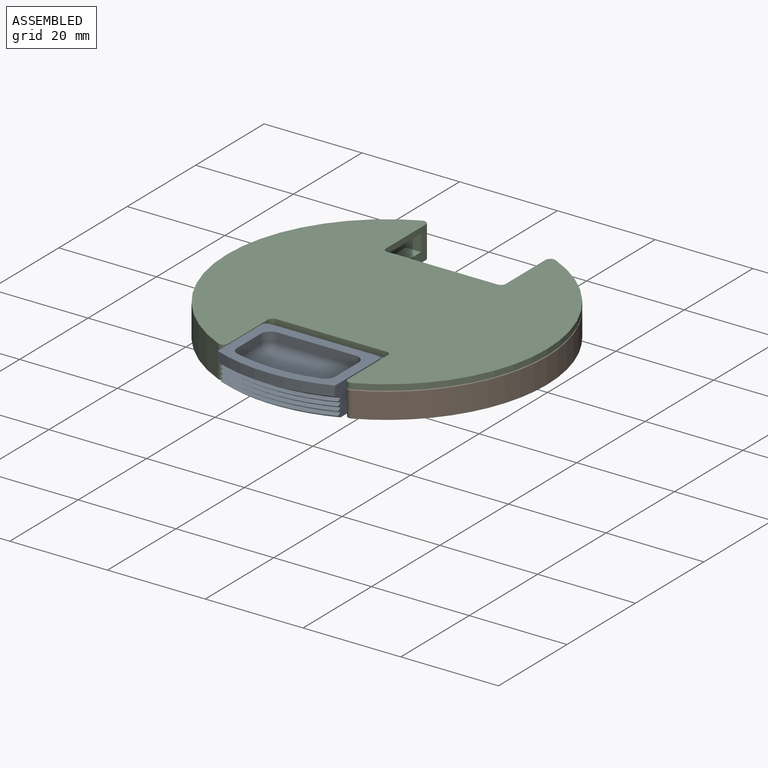
[diagram: assembled view]
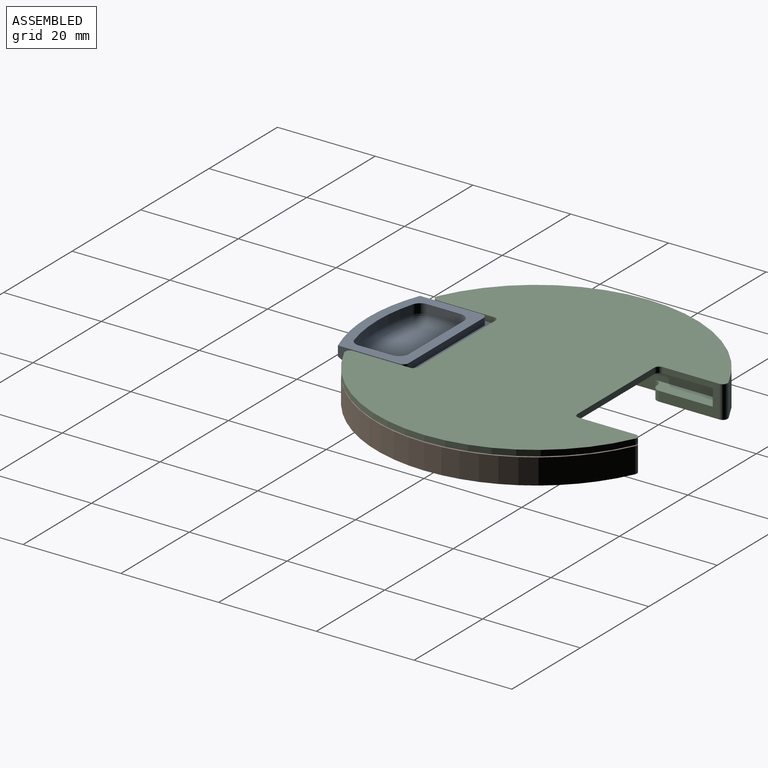
[diagram: assembled view, second angle]
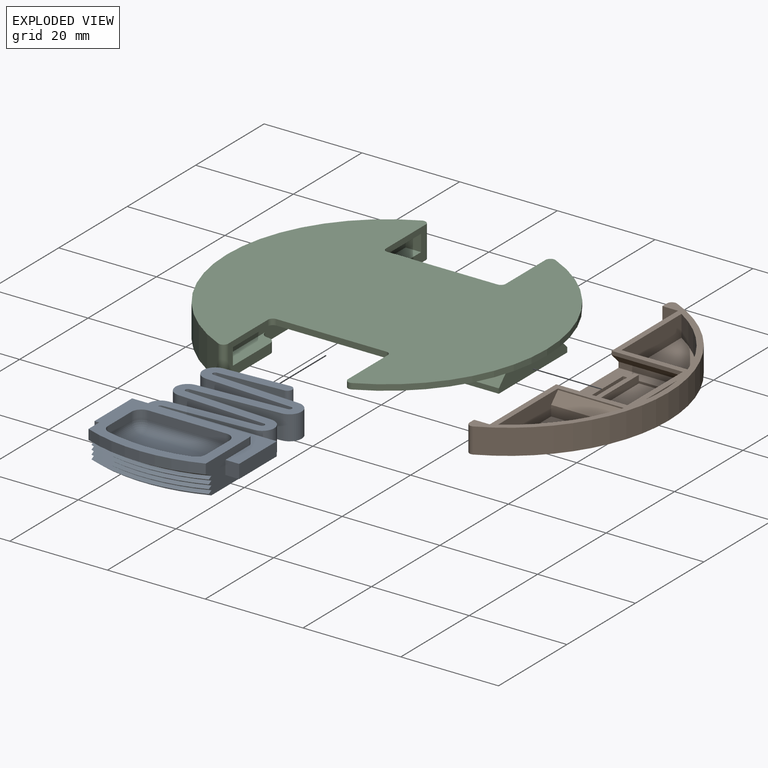
[diagram: exploded view]
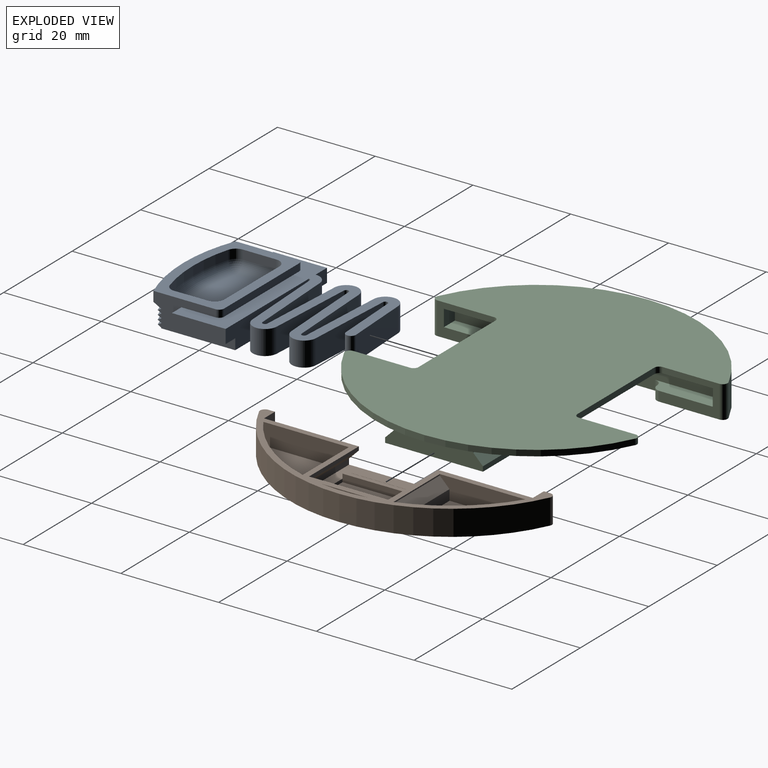
[diagram: exploded view, second angle]
ASSEMBLY  parts=3 mates=2
PART A: 69 faces, bbox 29.6x38.8x6.5 mm
  f0: plane 22x1.5mm, normal (0,1,0), area 33mm2, adj f36,f48,f49,f51
  f1: plane 16.76x6.51mm, normal (1,0,0), area 66.7mm2, adj f3,f4,f5,f22,f23,f24,f25,f26
  f2: plane 16.76x6.51mm, normal (-1,0,0), area 66.7mm2, adj f3,f5,f6,f22,f23,f24,f25,f26
  f3: cylinder r=33mm len=24mm, axis (0,0,-1), area 50mm2, adj f1,f2,f25,f51
  f4: plane 24.3x5mm, normal (0,1,0), area 115.3mm2, adj f1,f17,f36,f39,f40,f50
  f5: cylinder r=31.5mm len=24mm, axis (0,0,1), area 3.2mm2, adj f1,f2,f26,f50
  f6: plane 5x3.3mm, normal (0,1,0), area 10.3mm2, adj f2,f18,f34,f36,f37,f50
  f7: plane 18.17x5mm, normal (-0.06,1,0), area 91mm2, adj f8,f36,f41,f50
  f8: cylinder r=0.5mm len=5mm, axis (0,0,-1), area 7.6mm2, adj f7,f9,f36,f50
  f9: plane 18.17x5mm, normal (-0.06,-1,0), area 91mm2, adj f8,f36,f42,f50
  f10: plane 13.25x5mm, normal (0.06,-1,0), area 66.4mm2, adj f11,f36,f45,f50
  f11: cylinder r=0.5mm len=5mm, axis (0,0,-1), area 7.6mm2, adj f10,f12,f36,f50
  f12: plane 18.17x5mm, normal (0.06,1,0), area 91mm2, adj f11,f36,f46,f50
  f13: plane 18.17x5mm, normal (0.06,-1,0), area 91mm2, adj f14,f36,f46,f50
  f14: cylinder r=0.5mm len=5mm, axis (0,0,-1), area 7.6mm2, adj f13,f15,f36,f50
  f15: plane 18.17x5mm, normal (0.06,1,0), area 91mm2, adj f14,f36,f47,f50
  f16: plane 18.17x5mm, normal (0.06,-1,0), area 91mm2, adj f17,f36,f47,f50
  f17: cylinder r=0.5mm len=5mm, axis (0,0,-1), area 3.8mm2, adj f4,f16,f36,f50
  f18: cylinder r=2.5mm len=5mm, axis (0,0,-1), area 18.9mm2, adj f6,f20,f36,f50
  f19: plane 18.17x5mm, normal (-0.06,-1,0), area 91mm2, adj f21,f36,f41,f50
  f20: plane 18.17x5mm, normal (-0.06,1,0), area 91mm2, adj f18,f21,f36,f50
  f21: cylinder r=0.5mm len=5mm, axis (0,0,-1), area 7.6mm2, adj f19,f20,f36,f50
  f22: cylinder r=31.5mm len=24mm, axis (0,0,1), area 2.2mm2, adj f1,f2,f23,f33
  f23: cone r=31.5mm half-angle=60deg, axis (0,0,1), area 19.7mm2, adj f1,f2,f22,f24
  f24: cone r=31.5mm half-angle=60deg, axis (0,0,-1), area 19.7mm2, adj f1,f2,f23,f25
  f25: cone r=31.5mm half-angle=60deg, axis (0,0,1), area 42.6mm2, adj f1,f2,f3,f24
  f26: cone r=31.5mm half-angle=60deg, axis (0,0,1), area 19.7mm2, adj f1,f2,f5,f27
  f27: cone r=31.5mm half-angle=60deg, axis (0,0,-1), area 19.7mm2, adj f1,f2,f26,f28
  f28: cylinder r=31.5mm len=24mm, axis (0,0,1), area 2.2mm2, adj f1,f2,f27,f29
  f29: cone r=31.5mm half-angle=60deg, axis (0,0,1), area 19.7mm2, adj f1,f2,f28,f30
  f30: cone r=31.5mm half-angle=60deg, axis (0,0,-1), area 19.7mm2, adj f1,f2,f29,f31
  f31: cylinder r=31.5mm len=24mm, axis (0,0,1), area 2.2mm2, adj f1,f2,f30,f32
  f32: cone r=31.5mm half-angle=60deg, axis (0,0,1), area 19.7mm2, adj f1,f2,f31,f33
  f33: cone r=31.5mm half-angle=60deg, axis (0,0,-1), area 19.7mm2, adj f1,f2,f22,f32
  f34: plane 11x2.8mm, normal (0,0,-1), area 30.8mm2, adj f2,f6,f35,f37
  f35: plane 2.8x2.8mm, normal (0,-1,0), area 7.8mm2, adj f2,f34,f36,f37
  f36: plane 30.23x29.6mm, normal (0,0,1), area 348.7mm2, adj f0,f1,f2,f4,f6,f7,f8,f9
  f37: plane 11x2.8mm, normal (-1,0,0), area 30.8mm2, adj f6,f34,f35,f36
  f38: plane 2.8x2.8mm, normal (0,-1,0), area 7.8mm2, adj f1,f36,f39,f40
  f39: plane 11x2.8mm, normal (0,0,-1), area 30.8mm2, adj f1,f4,f38,f40
  f40: plane 11x2.8mm, normal (1,0,0), area 30.8mm2, adj f4,f36,f38,f39
  f41: cylinder r=2.5mm len=5mm, axis (0,0,-1), area 37.9mm2, adj f7,f19,f36,f50
  f42: cylinder r=2.5mm len=5mm, axis (0,0,-1), area 37.9mm2, adj f9,f36,f43,f50
  f43: plane 13.31x5mm, normal (-0.06,1,0), area 66.6mm2, adj f36,f42,f44,f50
  f44: cylinder r=1mm len=5mm, axis (0,0,-1), area 16mm2, adj f36,f43,f45,f50
  f45: plane 5x0mm, normal (1,0,0), area 0mm2, adj f10,f36,f44,f50
  f46: cylinder r=2.5mm len=5mm, axis (0,0,-1), area 37.9mm2, adj f12,f13,f36,f50
  f47: cylinder r=2.5mm len=5mm, axis (0,0,-1), area 37.9mm2, adj f15,f16,f36,f50
  f48: cylinder r=1mm len=1.5mm, axis (0,0,-1), area 2.4mm2, adj f0,f2,f36,f51
  f49: cylinder r=1mm len=1.5mm, axis (0,0,1), area 2.4mm2, adj f0,f1,f36,f51
  f50: plane 36.73x24mm, normal (0,0,-1), area 616mm2, adj f1,f2,f4,f5,f6,f7,f8,f9
  f51: plane 24x16mm, normal (0,0,1), area 139.2mm2, adj f0,f1,f2,f3,f48,f49,f61,f62
  f52: plane 16x8mm, normal (0,0,1), area 122mm2, adj f53,f54,f55,f56
  f53: cylinder r=2mm len=6.87mm, axis (0,1,0), area 21.6mm2, adj f52,f58,f60,f68
  f54: cylinder r=2mm len=16mm, axis (-1,0,0), area 50.3mm2, adj f52,f59,f60,f67
  f55: cylinder r=2mm len=6.87mm, axis (0,-1,0), area 21.6mm2, adj f52,f57,f59,f66
  f56: torus R=29mm, axis (0,0,1), area 53.2mm2, adj f52,f57,f58,f64
  f57: sphere r=2mm, area 5.2mm2, adj f55,f56,f63
  f58: sphere r=2mm, area 5.2mm2, adj f53,f56,f62
  f59: sphere r=2mm, area 6.3mm2, adj f54,f55,f65
  f60: sphere r=2mm, area 6.3mm2, adj f53,f54,f61
  f61: cylinder r=2mm len=2mm, axis (0,0,-1), area 6mm2, adj f51,f60,f67,f68
  f62: cylinder r=2mm len=1.92mm, axis (0,0,1), area 4.9mm2, adj f51,f58,f64,f68
  f63: cylinder r=2mm len=1.92mm, axis (0,0,1), area 4.9mm2, adj f51,f57,f64,f66
  f64: cylinder r=31mm len=17.1mm, axis (0,0,1), area 32.9mm2, adj f51,f56,f62,f63
  f65: cylinder r=2mm len=2mm, axis (0,0,1), area 6mm2, adj f51,f59,f66,f67
  f66: plane 6.87x1.9mm, normal (1,0,0), area 13.1mm2, adj f51,f55,f63,f65
  f67: plane 16x1.9mm, normal (0,-1,0), area 30.4mm2, adj f51,f54,f61,f65
  f68: plane 6.87x1.9mm, normal (-1,0,0), area 13.1mm2, adj f51,f53,f61,f62
PART B: 55 faces, bbox 20.5x59.7x5.2 mm
  f0: plane 14x8.2mm, normal (0,0,1), area 114.8mm2, adj f20,f22,f26,f27
  f1: plane 20.2x14.55mm, normal (0,0,1), area 106.7mm2, adj f2,f16,f17,f20,f23,f24,f25
  f2: plane 55x5.2mm, normal (-1,0,0), area 157.9mm2, adj f1,f3,f4,f5,f6,f10,f14,f15
  f3: plane 14.1x3.2mm, normal (0,0,1), area 40mm2, adj f2,f5,f7,f48,f49
  f4: plane 14.1x3.2mm, normal (0,0,1), area 40mm2, adj f2,f6,f9,f46,f47
  f5: plane 3.2x3.2mm, normal (0,-1,0), area 10.2mm2, adj f2,f3,f7,f10
  f6: plane 3.2x3.2mm, normal (0,1,0), area 10.2mm2, adj f2,f4,f9,f10
  f7: plane 12.25x5.2mm, normal (-1,0,0), area 28.8mm2, adj f3,f5,f10,f12,f45,f48
  f8: cylinder r=32.75mm len=59.52mm, axis (0,0,-1), area 388.4mm2, adj f10,f11,f12,f45
  f9: plane 12.25x5.2mm, normal (-1,0,0), area 28.8mm2, adj f4,f6,f10,f11,f45,f46
  f10: plane 59.71x20.5mm, normal (0,0,1), area 191.1mm2, adj f2,f5,f6,f7,f8,f9,f11,f12
  f11: cylinder r=1mm len=5.2mm, axis (0,0,-1), area 10.4mm2, adj f8,f9,f10,f45
  f12: cylinder r=1mm len=5.2mm, axis (0,0,-1), area 10.4mm2, adj f7,f8,f10,f45
  f13: plane 14x0.12mm, normal (0,0,1), area 1.7mm2, adj f21,f22,f26,f28
  f14: plane 14.55x0.76mm, normal (0,1,0), area 11mm2, adj f2,f10,f15,f20
  f15: plane 14.55x2mm, normal (0,0.71,-0.71), area 41.2mm2, adj f2,f14,f16,f20
  f16: plane 14.55x1.14mm, normal (0,1,0), area 16.6mm2, adj f1,f2,f15,f20
  f17: plane 14.55x1.14mm, normal (0,-1,0), area 16.6mm2, adj f1,f2,f18,f20
  f18: plane 14.55x2mm, normal (0,-0.71,-0.71), area 41.2mm2, adj f2,f17,f19,f20
  f19: plane 14.55x0.76mm, normal (0,-1,0), area 11mm2, adj f2,f10,f18,f20
  f20: plane 20.2x5.2mm, normal (-1,0,0), area 73.8mm2, adj f0,f1,f10,f14,f15,f16,f17,f18
  f21: plane 14x1.3mm, normal (-1,0,0), area 18.2mm2, adj f13,f22,f26,f45
  f22: plane 11.2x2.88mm, normal (0,-1,0), area 17.6mm2, adj f0,f13,f20,f21,f27,f28,f29,f45
  f23: plane 12x1.3mm, normal (0,1,0), area 15.6mm2, adj f1,f20,f24,f45
  f24: plane 15.6x1.3mm, normal (1,0,0), area 20.3mm2, adj f1,f23,f25,f45
  f25: plane 12x1.3mm, normal (0,-1,0), area 15.6mm2, adj f1,f20,f24,f45
  f26: plane 11.2x2.88mm, normal (0,1,0), area 17.6mm2, adj f0,f13,f20,f21,f27,f28,f29,f45
  f27: plane 14x1.58mm, normal (1,0,0), area 22.2mm2, adj f0,f22,f26,f29
  f28: plane 14x1.9mm, normal (-0.64,0,0.77), area 34.7mm2, adj f13,f22,f26,f29
  f29: plane 14x0.98mm, normal (0,0,1), area 13.7mm2, adj f22,f26,f27,f28
  f30: plane 13.51x2.01mm, normal (0,-0.71,0.71), area 37.2mm2, adj f31,f33,f34,f35
  f31: plane 13.5x0.26mm, normal (0,-1,0), area 3.5mm2, adj f10,f30,f33,f34
  f32: plane 15.5x12.81mm, normal (0,0,1), area 121.4mm2, adj f33,f34,f35
  f33: plane 17.5x4.4mm, normal (1,0,0), area 70.7mm2, adj f10,f30,f31,f32,f34,f35
  f34: cylinder r=31.55mm len=17.5mm, axis (0,0,-1), area 92.7mm2, adj f10,f30,f31,f32,f33,f35
  f35: plane 12.81x2.14mm, normal (0,-1,0), area 27.4mm2, adj f30,f32,f33,f34
  f36: plane 13.5x0.26mm, normal (0,1,0), area 3.5mm2, adj f10,f37,f38,f39
  f37: plane 13.51x2.01mm, normal (0,0.71,0.71), area 37.2mm2, adj f36,f38,f39,f41
  f38: cylinder r=31.55mm len=17.5mm, axis (0,0,-1), area 92.7mm2, adj f10,f36,f37,f39,f40,f41
  f39: plane 17.5x4.4mm, normal (1,0,0), area 70.7mm2, adj f10,f36,f37,f38,f40,f41
  f40: plane 15.5x12.81mm, normal (0,0,1), area 121.4mm2, adj f38,f39,f41
  f41: plane 12.81x2.14mm, normal (0,1,0), area 27.4mm2, adj f37,f38,f39,f40
  f42: plane 9.37x4.4mm, normal (1,0,0), area 41.2mm2, adj f10,f43,f44
  f43: cylinder r=31.55mm len=9.37mm, axis (0,0,-1), area 41.4mm2, adj f10,f42,f44
  f44: plane 9.37x0.35mm, normal (0,0,1), area 2.2mm2, adj f42,f43
  f45: plane 59.71x20.5mm, normal (0,0,-1), area 774mm2, adj f2,f7,f8,f9,f11,f12,f20,f21
  f46: cylinder r=1.6mm len=2mm, axis (0,0,1), area 5mm2, adj f4,f9,f45,f47
  f47: cylinder r=1.6mm len=2mm, axis (0,0,1), area 5mm2, adj f2,f4,f45,f46
  f48: cylinder r=1.6mm len=2mm, axis (0,0,-1), area 5mm2, adj f3,f7,f45,f49
  f49: cylinder r=1.6mm len=2mm, axis (0,0,-1), area 5mm2, adj f2,f3,f45,f48
  f50: plane 11.6x0.41mm, normal (0,0,1), area 4.7mm2, adj f51,f52,f53,f54
  f51: plane 0.41x0.34mm, normal (0,1,0), area 0.1mm2, adj f50,f53,f54
  f52: plane 0.41x0.34mm, normal (0,-1,0), area 0.1mm2, adj f50,f53,f54
  f53: plane 11.6x0.34mm, normal (-1,0,0), area 3.9mm2, adj f50,f51,f52,f54
  f54: plane 11.6x0.41mm, normal (0.64,0,-0.77), area 6.1mm2, adj f50,f51,f52,f53
PART C: 67 faces, bbox 65.5x59.7x6.6 mm
  f0: plane 59.71x20.5mm, normal (0,0,-1), area 163.5mm2, adj f10,f11,f12,f25,f29,f30,f31,f32
  f1: plane 22.5x1.2mm, normal (0,1,0), area 27mm2, adj f8,f9,f18,f41
  f2: plane 11.6x1.2mm, normal (-1,0,0), area 13.9mm2, adj f8,f18,f19,f41
  f3: cylinder r=32.75mm len=59.52mm, axis (0,0,-1), area 89.6mm2, adj f18,f19,f20,f41
  f4: plane 22.5x1.2mm, normal (0,-1,0), area 27mm2, adj f6,f7,f18,f41
  f5: plane 11.6x1.2mm, normal (-1,0,0), area 13.9mm2, adj f7,f18,f20,f41
  f6: cylinder r=1mm len=1.2mm, axis (0,0,1), area 1.9mm2, adj f4,f11,f18,f41
  f7: cylinder r=1mm len=1.2mm, axis (0,0,1), area 1.9mm2, adj f4,f5,f18,f41
  f8: cylinder r=1mm len=1.2mm, axis (0,0,-1), area 1.9mm2, adj f1,f2,f18,f41
  f9: cylinder r=1mm len=1.2mm, axis (0,0,-1), area 1.9mm2, adj f1,f10,f18,f41
  f10: plane 12.25x6.6mm, normal (1,0,0), area 43mm2, adj f0,f9,f18,f26,f27,f29,f34,f41
  f11: plane 12.25x6.6mm, normal (1,0,0), area 43mm2, adj f0,f6,f18,f24,f28,f30,f32,f41
  f12: cylinder r=32.75mm len=59.52mm, axis (0,0,-1), area 493mm2, adj f0,f29,f30,f41
  f13: plane 14.45x1mm, normal (0,-1,0), area 14.4mm2, adj f15,f16,f23,f35
  f14: plane 14.45x1mm, normal (0,1,0), area 14.4mm2, adj f15,f17,f23,f35
  f15: plane 20x14.45mm, normal (0,0,-1), area 246.2mm2, adj f13,f14,f23,f35,f36,f37,f38,f39
  f16: plane 14.45x2mm, normal (0,-0.71,0.71), area 40.9mm2, adj f13,f21,f23,f35
  f17: plane 14.45x2mm, normal (0,0.71,0.71), area 40.9mm2, adj f14,f22,f23,f35
  f18: plane 59.71x48.2mm, normal (0,0,-1), area 1642.4mm2, adj f1,f2,f3,f4,f5,f6,f7,f8
  f19: cylinder r=1mm len=1.42mm, axis (0,0,-1), area 2.4mm2, adj f2,f3,f18,f41
  f20: cylinder r=1mm len=1.42mm, axis (0,0,-1), area 2.4mm2, adj f3,f5,f18,f41
  f21: plane 14.45x1mm, normal (0,-1,0), area 14.4mm2, adj f16,f18,f23,f35
  f22: plane 14.45x1mm, normal (0,1,0), area 14.4mm2, adj f17,f18,f23,f35
  f23: plane 20x4mm, normal (-1,0,0), area 72mm2, adj f13,f14,f15,f16,f17,f18,f21,f22
  f24: plane 14.1x3.2mm, normal (0,0,1), area 40mm2, adj f11,f25,f28,f31,f32
  f25: plane 55x5.4mm, normal (1,0,0), area 240.6mm2, adj f0,f18,f24,f26,f27,f28,f31,f33
  f26: plane 14.1x3.2mm, normal (0,0,1), area 40mm2, adj f10,f25,f27,f33,f34
  f27: plane 3.4x3.2mm, normal (0,-1,0), area 10.9mm2, adj f10,f18,f25,f26
  f28: plane 3.4x3.2mm, normal (0,1,0), area 10.9mm2, adj f11,f18,f24,f25
  f29: cylinder r=1mm len=6.6mm, axis (0,0,-1), area 13.2mm2, adj f0,f10,f12,f41
  f30: cylinder r=1mm len=6.6mm, axis (0,0,-1), area 13.2mm2, adj f0,f11,f12,f41
  f31: cylinder r=1.6mm len=2mm, axis (0,0,-1), area 5mm2, adj f0,f24,f25,f32
  f32: cylinder r=1.6mm len=2mm, axis (0,0,1), area 5mm2, adj f0,f11,f24,f31
  f33: cylinder r=1.6mm len=2mm, axis (0,0,1), area 5mm2, adj f0,f25,f26,f34
  f34: cylinder r=1.6mm len=2mm, axis (0,0,-1), area 5mm2, adj f0,f10,f26,f33
  f35: plane 20x4mm, normal (1,0,0), area 72mm2, adj f13,f14,f15,f16,f17,f18,f21,f22
  f36: plane 3.02x1.58mm, normal (0,1,0), area 3.3mm2, adj f15,f38,f39,f40
  f37: plane 3.02x1.58mm, normal (0,-1,0), area 3.3mm2, adj f15,f38,f39,f40
  f38: plane 14.2x1.58mm, normal (-1,0,0), area 22.5mm2, adj f15,f36,f37,f40
  f39: plane 14.2x1.9mm, normal (0.64,0,-0.77), area 35.1mm2, adj f15,f36,f37,f40
  f40: plane 14.2x1.11mm, normal (0,0,-1), area 15.8mm2, adj f36,f37,f38,f39
  f41: plane 65.5x59.71mm, normal (0,0,1), area 2598mm2, adj f1,f2,f3,f4,f5,f6,f7,f8
  f42: cylinder r=31.55mm len=57.08mm, axis (0,0,-1), area 351.6mm2, adj f0,f43,f44,f45,f46,f47,f52
  f43: plane 11.94x0.8mm, normal (-1,0,0), area 9.6mm2, adj f0,f42,f47,f51
  f44: plane 11.94x0.8mm, normal (-1,0,0), area 9.6mm2, adj f0,f42,f45,f49
  f45: plane 15.14x3.2mm, normal (0,0,-1), area 38.5mm2, adj f42,f44,f46,f48,f49
  f46: plane 53.6x5.4mm, normal (-1,0,0), area 268mm2, adj f0,f42,f45,f47,f48,f50,f52
  f47: plane 15.14x3.2mm, normal (0,0,-1), area 38.5mm2, adj f42,f43,f46,f50,f51
  f48: cylinder r=2.8mm len=2.8mm, axis (0,0,-1), area 3.5mm2, adj f0,f45,f46,f49
  f49: cylinder r=0.4mm len=0.8mm, axis (0,0,1), area 0.5mm2, adj f0,f44,f45,f48
  f50: cylinder r=2.8mm len=2.8mm, axis (0,0,1), area 3.5mm2, adj f0,f46,f47,f51
  f51: cylinder r=0.4mm len=0.8mm, axis (0,0,-1), area 0.5mm2, adj f0,f43,f47,f50
  f52: plane 53.6x14.9mm, normal (0,0,-1), area 564mm2, adj f42,f46
  f53: plane 3.36x1.3mm, normal (0,-0.71,-0.71), area 4.8mm2, adj f56,f59,f61,f64
  f54: plane 3.36x1.3mm, normal (0,0.71,-0.71), area 4.8mm2, adj f56,f59,f63,f64
  f55: plane 16.21x5.6mm, normal (0,0,1), area 90.8mm2, adj f57,f58,f62,f65
  f56: plane 16.21x1.8mm, normal (0,0,1), area 29.2mm2, adj f53,f54,f59,f64
  f57: plane 5.6x1.3mm, normal (0,-0.71,-0.71), area 10.3mm2, adj f55,f61,f62,f65
  f58: plane 5.6x1.3mm, normal (0,0.71,-0.71), area 10.3mm2, adj f55,f62,f63,f65
  f59: plane 16.21x1.9mm, normal (-0.64,0,0.77), area 36.3mm2, adj f53,f54,f56,f61,f63,f66
  f60: plane 13.6x12.05mm, normal (0,0,-1), area 163.9mm2, adj f61,f63,f64,f65
  f61: plane 12.05x1.5mm, normal (0,-1,0), area 17.2mm2, adj f53,f57,f59,f60,f62,f64,f65,f66
  f62: plane 16.21x1.58mm, normal (1,0,0), area 23.2mm2, adj f55,f57,f58,f61,f63,f66
  f63: plane 12.05x1.5mm, normal (0,1,0), area 17.2mm2, adj f54,f58,f59,f60,f62,f64,f65,f66
  f64: plane 16.21x2.8mm, normal (1,0,0), area 39.8mm2, adj f53,f54,f56,f60,f61,f63
  f65: plane 16.21x2.8mm, normal (-1,0,0), area 39.8mm2, adj f55,f57,f58,f60,f61,f63
  f66: plane 13.6x2.75mm, normal (0,0,1), area 37.4mm2, adj f59,f61,f62,f63
PLACE A t=(83.35,0.5,-3.79)mm
PLACE B t=(7.14,0,-3.88)mm
PLACE C t=(7.14,0,-3.89)mm fixed
MATE slider A.f35 <-> C.f28  axis (0,-1,0) through (-6.31,-26.5,0.21)mm
MATE slider C.f35 <-> B.f20  axis (1,0,0) through (37.04,0,-0.2)mm
